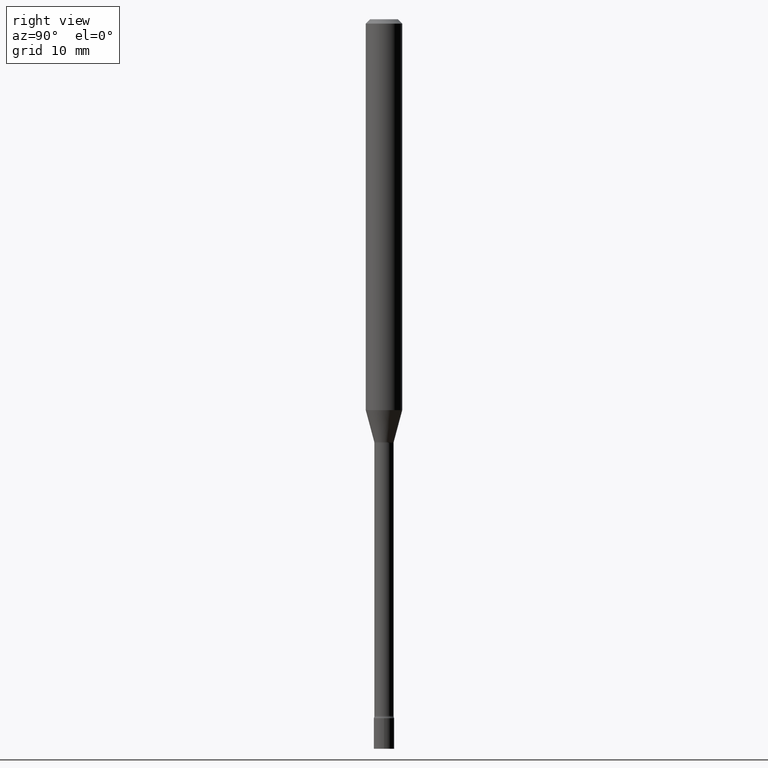
[diagram: clean part render]
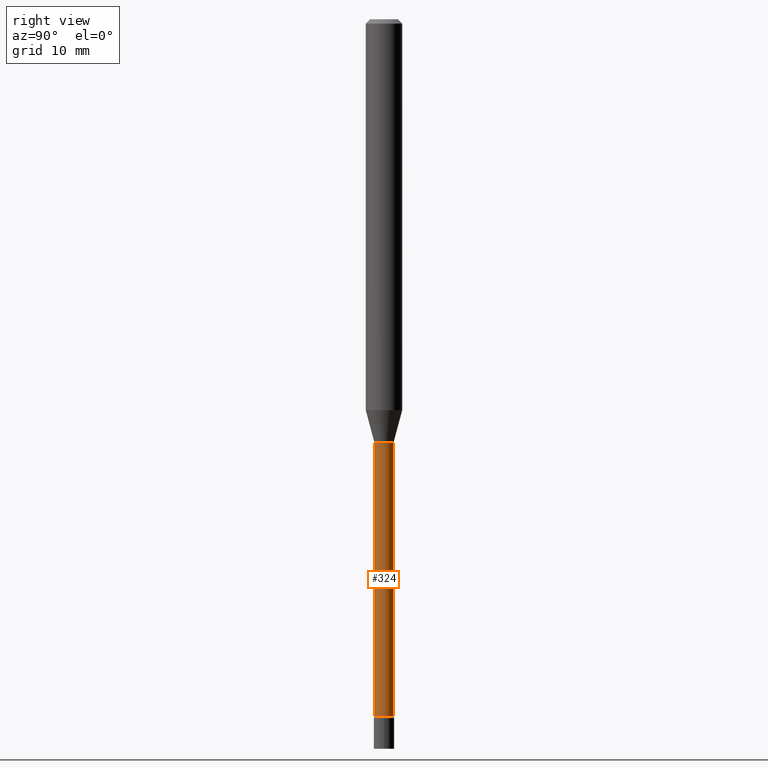
[diagram: same view with one face highlighted and labeled with its STEP entity id]
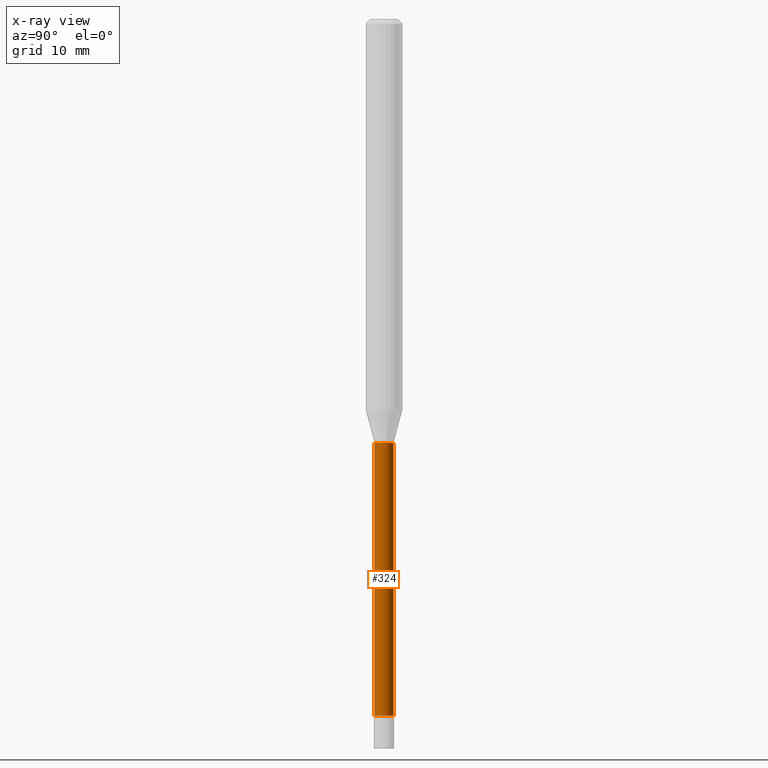
[diagram: x-ray of the same camera — body ghosted, the highlighted face saturated]
A machine part, right view. The second image highlights one B-rep face of the part: STEP entity #324.
The next image is the same camera in x-ray: the body ghosted, the highlighted face saturated — about 0% of this face is hidden behind the body in this view.
In plain terms, the highlighted cylindrical surface (edge-blend (fillet) strip) has radius 0.8357 mm, axis along (-0, 0, 1).
Its self-contained STEP definition (entity closure, byte-faithful):
#25 = CARTESIAN_POINT ( 'NONE',  ( 2.412292587906127904E-16, 0.03289999999999172753, -2.387345589506696175 ) ) ;
#28 = LINE ( 'NONE', #420, #309 ) ;
#54 = CARTESIAN_POINT ( 'NONE',  ( -2.297394720958425553E-16, -0.03290000000000506408, -1.451974787463811145 ) ) ;
#60 = VERTEX_POINT ( 'NONE', #25 ) ;
#79 = ORIENTED_EDGE ( 'NONE', *, *, #189, .T. ) ;
#82 = DIRECTION ( 'NONE',  ( -2.445517311797238408E-29, 3.491411876045847852E-15, 1.000000000000000000 ) ) ;
#100 = DIRECTION ( 'NONE',  ( -2.445517311797238688E-29, 3.491411876045848246E-15, 1.000000000000000000 ) ) ;
#110 = ORIENTED_EDGE ( 'NONE', *, *, #160, .F. ) ;
#118 = DIRECTION ( 'NONE',  ( -6.982962677686266711E-15, -1.000000000000000000, 0.000000000000000000 ) ) ;
#133 = ORIENTED_EDGE ( 'NONE', *, *, #268, .F. ) ;
#156 = DIRECTION ( 'NONE',  ( -2.445517311797238408E-29, 3.491411876045847852E-15, 1.000000000000000000 ) ) ;
#157 = AXIS2_PLACEMENT_3D ( 'NONE', #265, #82, #118 ) ;
#159 = CARTESIAN_POINT ( 'NONE',  ( 3.550829479035866217E-29, -5.069442016670295650E-15, -1.451974787463811145 ) ) ;
#160 = EDGE_CURVE ( 'NONE', #337, #407, #28, .T. ) ;
#181 = AXIS2_PLACEMENT_3D ( 'NONE', #159, #229, #394 ) ;
#189 = EDGE_CURVE ( 'NONE', #60, #351, #385, .T. ) ;
#194 = ORIENTED_EDGE ( 'NONE', *, *, #345, .T. ) ;
#229 = DIRECTION ( 'NONE',  ( -2.445517311797238408E-29, 3.491411876045847852E-15, 1.000000000000000000 ) ) ;
#246 = AXIS2_PLACEMENT_3D ( 'NONE', #356, #156, #308 ) ;
#265 = CARTESIAN_POINT ( 'NONE',  ( 5.838294968381408865E-29, -8.335206743429354077E-15, -2.387345589506696175 ) ) ;
#268 = EDGE_CURVE ( 'NONE', #407, #351, #270, .T. ) ;
#270 = CIRCLE ( 'NONE', #181, 0.03289999999999999175 ) ;
#286 = CARTESIAN_POINT ( 'NONE',  ( 2.337685600650730998E-16, 0.03290000000000002645, -1.148674507219084772E-16 ) ) ;
#308 = DIRECTION ( 'NONE',  ( -6.982962677686266711E-15, -1.000000000000000000, 3.491411876045847458E-15 ) ) ;
#309 = VECTOR ( 'NONE', #460, 39.37007874015748143 ) ;
#324 = ADVANCED_FACE ( 'NONE', ( #348 ), #442, .T. ) ;
#337 = VERTEX_POINT ( 'NONE', #516 ) ;
#345 = EDGE_CURVE ( 'NONE', #337, #60, #417, .T. ) ;
#348 = FACE_OUTER_BOUND ( 'NONE', #379, .T. ) ;
#351 = VERTEX_POINT ( 'NONE', #476 ) ;
#356 = CARTESIAN_POINT ( 'NONE',  ( 0.000000000000000000, 0.000000000000000000, 0.000000000000000000 ) ) ;
#379 = EDGE_LOOP ( 'NONE', ( #194, #79, #133, #110 ) ) ;
#385 = LINE ( 'NONE', #286, #409 ) ;
#394 = DIRECTION ( 'NONE',  ( -6.982962677686265922E-15, -1.000000000000000000, 0.000000000000000000 ) ) ;
#407 = VERTEX_POINT ( 'NONE', #54 ) ;
#409 = VECTOR ( 'NONE', #100, 39.37007874015748143 ) ;
#417 = CIRCLE ( 'NONE', #157, 0.03290000000000006114 ) ;
#420 = CARTESIAN_POINT ( 'NONE',  ( -2.297394720958783499E-16, -0.03290000000000002645, 1.148674507219084772E-16 ) ) ;
#442 = CYLINDRICAL_SURFACE ( 'NONE', #246, 0.03290000000000002645 ) ;
#460 = DIRECTION ( 'NONE',  ( -2.445517311797238688E-29, 3.491411876045848246E-15, 1.000000000000000000 ) ) ;
#476 = CARTESIAN_POINT ( 'NONE',  ( 2.337685600651315248E-16, 0.03289999999999491942, -1.451974787463811145 ) ) ;
#516 = CARTESIAN_POINT ( 'NONE',  ( -2.297394720958201714E-16, -0.03290000000000839475, -2.387345589506696175 ) ) ;